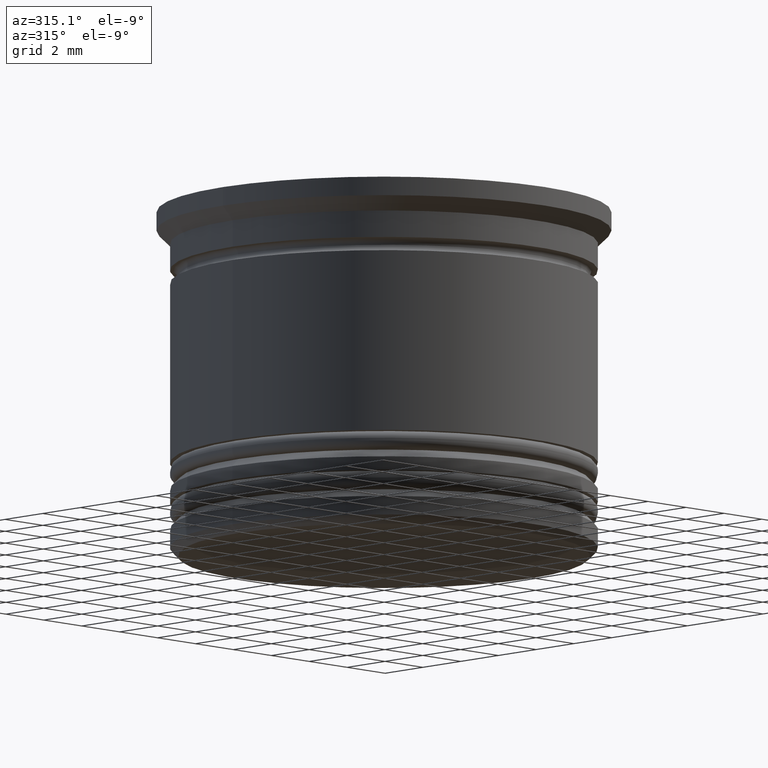
[diagram: clean part render]
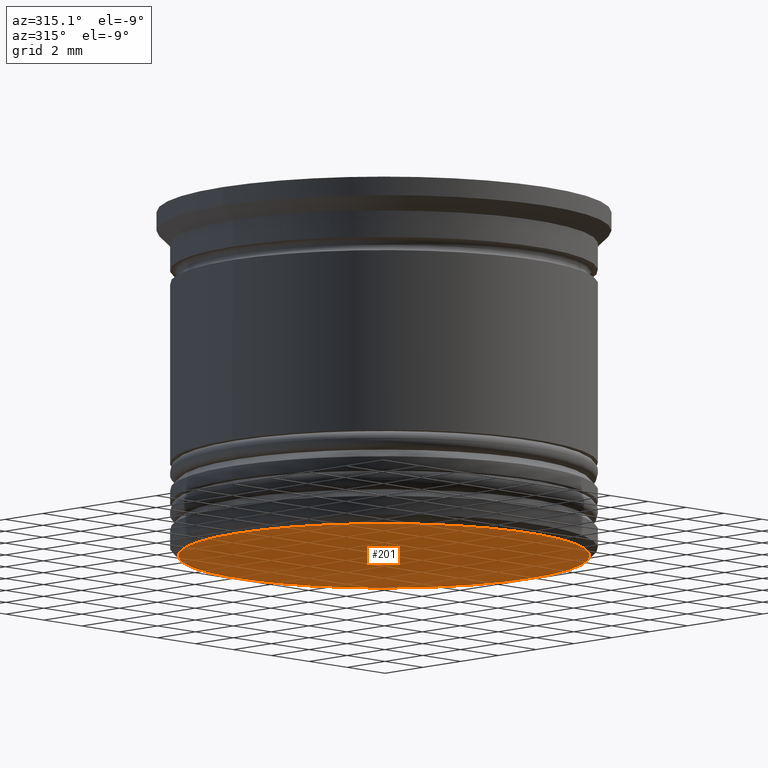
[diagram: same view with one face highlighted and labeled with its STEP entity id]
A machine part, auxiliary view. The second image highlights one B-rep face of the part: STEP entity #201.
In plain terms, the highlighted planar face has unit normal (0, 0, -1).
Its self-contained STEP definition (entity closure, byte-faithful):
#98 = EDGE_LOOP ( 'NONE', ( #439, #995 ) ) ;
#198 = DIRECTION ( 'NONE',  ( 0.000000000000000000, 0.000000000000000000, -1.000000000000000000 ) ) ;
#201 = ADVANCED_FACE ( 'NONE', ( #402 ), #1444, .T. ) ;
#246 = DIRECTION ( 'NONE',  ( -1.000000000000000000, 0.000000000000000000, -0.000000000000000000 ) ) ;
#268 = CARTESIAN_POINT ( 'NONE',  ( 7.699999999999998401, 0.000000000000000000, -13.00000000000000178 ) ) ;
#289 = EDGE_CURVE ( 'NONE', #1498, #1343, #1039, .T. ) ;
#402 = FACE_OUTER_BOUND ( 'NONE', #98, .T. ) ;
#439 = ORIENTED_EDGE ( 'NONE', *, *, #1250, .T. ) ;
#484 = AXIS2_PLACEMENT_3D ( 'NONE', #1284, #198, #1737 ) ;
#839 = CARTESIAN_POINT ( 'NONE',  ( 0.000000000000000000, 8.000000000000000000, -13.00000000000000178 ) ) ;
#951 = CARTESIAN_POINT ( 'NONE',  ( 0.000000000000000000, 0.000000000000000000, -13.00000000000000178 ) ) ;
#995 = ORIENTED_EDGE ( 'NONE', *, *, #289, .T. ) ;
#1039 = CIRCLE ( 'NONE', #1842, 7.699999999999998401 ) ;
#1076 = CIRCLE ( 'NONE', #484, 7.699999999999998401 ) ;
#1240 = DIRECTION ( 'NONE',  ( 0.000000000000000000, 0.000000000000000000, -1.000000000000000000 ) ) ;
#1250 = EDGE_CURVE ( 'NONE', #1343, #1498, #1076, .T. ) ;
#1284 = CARTESIAN_POINT ( 'NONE',  ( 0.000000000000000000, 0.000000000000000000, -13.00000000000000178 ) ) ;
#1343 = VERTEX_POINT ( 'NONE', #268 ) ;
#1442 = AXIS2_PLACEMENT_3D ( 'NONE', #839, #1459, #246 ) ;
#1444 = PLANE ( 'NONE',  #1442 ) ;
#1459 = DIRECTION ( 'NONE',  ( 0.000000000000000000, 0.000000000000000000, -1.000000000000000000 ) ) ;
#1498 = VERTEX_POINT ( 'NONE', #1815 ) ;
#1737 = DIRECTION ( 'NONE',  ( -1.000000000000000000, 0.000000000000000000, 0.000000000000000000 ) ) ;
#1815 = CARTESIAN_POINT ( 'NONE',  ( -7.699999999999998401, 9.613477373306721357E-16, -13.00000000000000178 ) ) ;
#1825 = DIRECTION ( 'NONE',  ( -1.000000000000000000, 0.000000000000000000, 0.000000000000000000 ) ) ;
#1842 = AXIS2_PLACEMENT_3D ( 'NONE', #951, #1240, #1825 ) ;